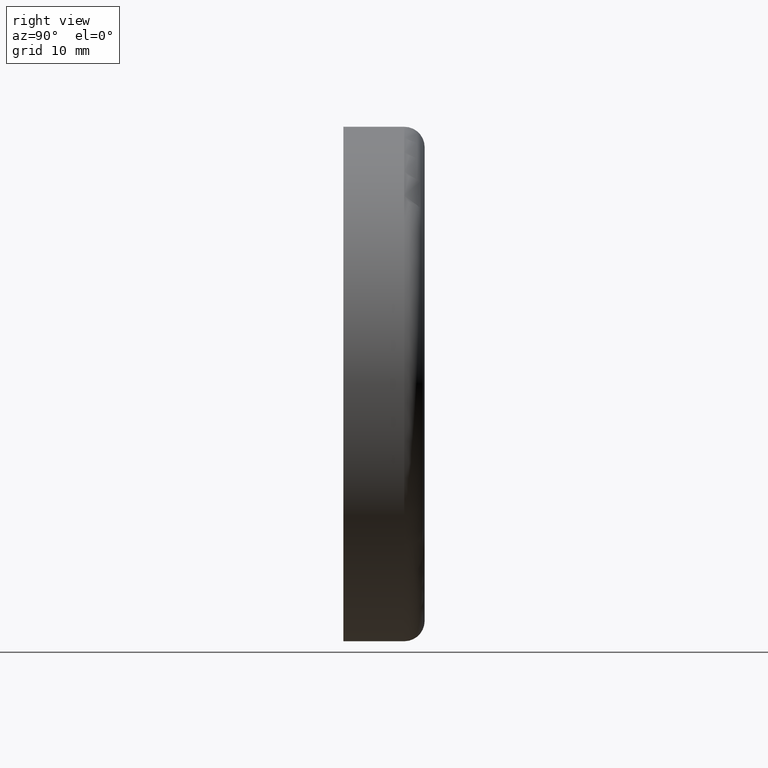
[diagram: clean part render]
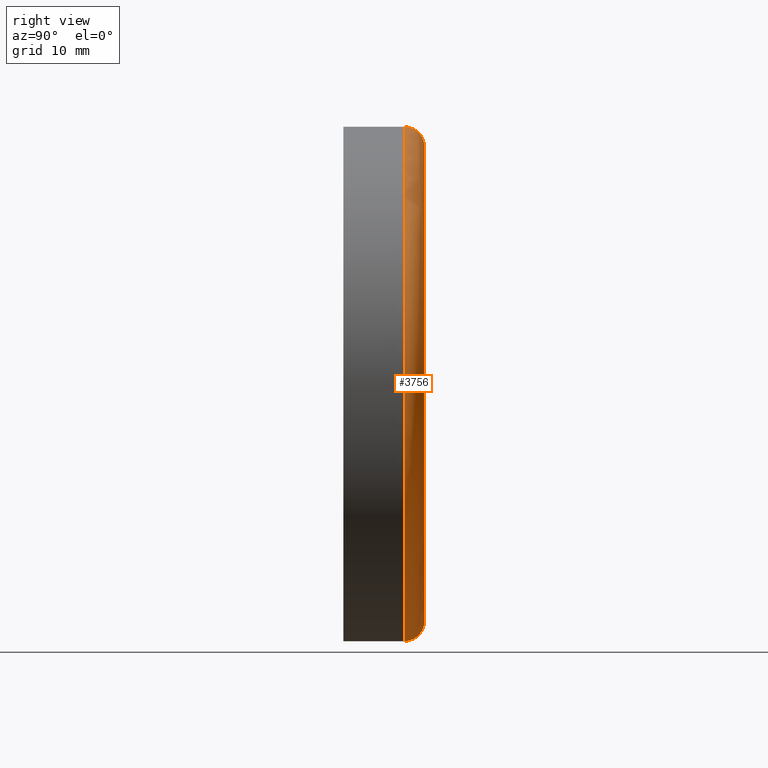
[diagram: same view with one face highlighted and labeled with its STEP entity id]
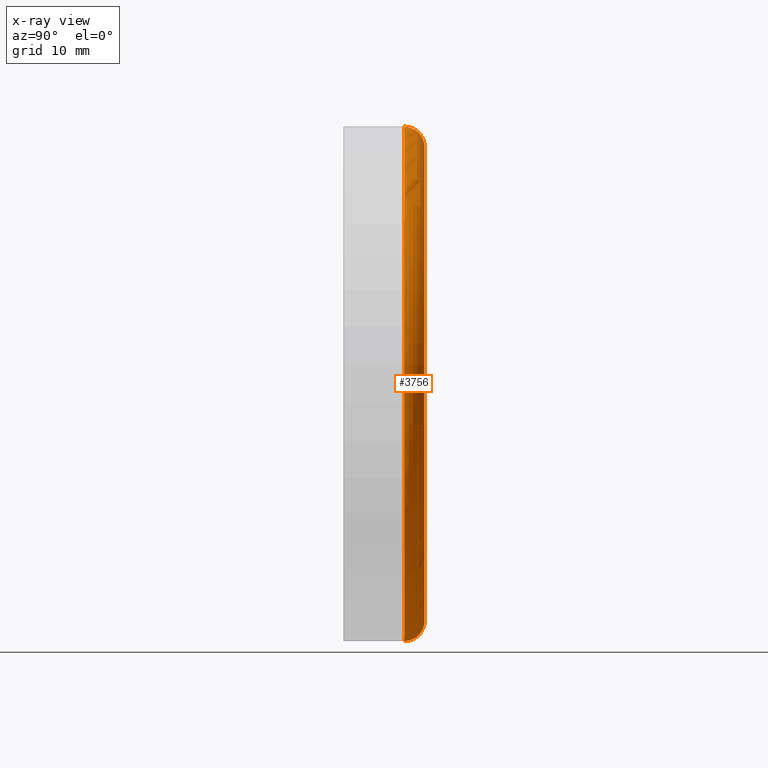
[diagram: x-ray of the same camera — body ghosted, the highlighted face saturated]
A machine part, right view. The second image highlights one B-rep face of the part: STEP entity #3756.
The next image is the same camera in x-ray: the body ghosted, the highlighted face saturated — about 0% of this face is hidden behind the body in this view.
In plain terms, the highlighted toroidal blend (fillet) surface has major radius 35 mm and minor (blend) radius 3 mm.
Its self-contained STEP definition (entity closure, byte-faithful):
#369 = VERTEX_POINT ( 'NONE', #5139 ) ;
#1020 = CARTESIAN_POINT ( 'NONE',  ( 4.286263797015736496E-15, 9.000000000000001776, 35.00000000000000000 ) ) ;
#1429 = DIRECTION ( 'NONE',  ( 0.000000000000000000, 0.000000000000000000, -1.000000000000000000 ) ) ;
#1714 = AXIS2_PLACEMENT_3D ( 'NONE', #9627, #13442, #15935 ) ;
#2566 = ORIENTED_EDGE ( 'NONE', *, *, #7950, .T. ) ;
#2677 = VERTEX_POINT ( 'NONE', #14003 ) ;
#3374 = CARTESIAN_POINT ( 'NONE',  ( 0.000000000000000000, 12.00000000000000000, 0.000000000000000000 ) ) ;
#3439 = AXIS2_PLACEMENT_3D ( 'NONE', #8826, #8938, #1429 ) ;
#3562 = DIRECTION ( 'NONE',  ( -0.000000000000000000, -1.000000000000000000, -0.000000000000000000 ) ) ;
#3612 = FACE_OUTER_BOUND ( 'NONE', #4801, .T. ) ;
#3756 = ADVANCED_FACE ( 'NONE', ( #3612 ), #15035, .T. ) ;
#4801 = EDGE_LOOP ( 'NONE', ( #2566, #8940, #8868, #15217 ) ) ;
#5139 = CARTESIAN_POINT ( 'NONE',  ( 4.469960816887840007E-15, 12.00000000000000000, 35.00000000000000000 ) ) ;
#5228 = EDGE_CURVE ( 'NONE', #13219, #2677, #6288, .T. ) ;
#5372 = CIRCLE ( 'NONE', #1714, 3.000000000000002665 ) ;
#5812 = DIRECTION ( 'NONE',  ( -0.000000000000000000, -1.000000000000000000, -0.000000000000000000 ) ) ;
#6288 = CIRCLE ( 'NONE', #8747, 38.00000000000000711 ) ;
#6657 = AXIS2_PLACEMENT_3D ( 'NONE', #1020, #7205, #7043 ) ;
#7043 = DIRECTION ( 'NONE',  ( -1.224646799147351975E-16, 0.000000000000000000, -1.000000000000000000 ) ) ;
#7153 = EDGE_CURVE ( 'NONE', #369, #2677, #10165, .T. ) ;
#7186 = DIRECTION ( 'NONE',  ( 0.000000000000000000, 0.000000000000000000, -1.000000000000000000 ) ) ;
#7205 = DIRECTION ( 'NONE',  ( 1.000000000000000000, 0.000000000000000000, -1.224646799147353207E-16 ) ) ;
#7950 = EDGE_CURVE ( 'NONE', #14778, #369, #8596, .T. ) ;
#8596 = CIRCLE ( 'NONE', #11345, 35.00000000000000000 ) ;
#8747 = AXIS2_PLACEMENT_3D ( 'NONE', #9855, #3562, #7186 ) ;
#8826 = CARTESIAN_POINT ( 'NONE',  ( 0.000000000000000000, 9.000000000000001776, 0.000000000000000000 ) ) ;
#8868 = ORIENTED_EDGE ( 'NONE', *, *, #5228, .F. ) ;
#8938 = DIRECTION ( 'NONE',  ( -0.000000000000000000, -1.000000000000000000, -0.000000000000000000 ) ) ;
#8940 = ORIENTED_EDGE ( 'NONE', *, *, #7153, .T. ) ;
#9627 = CARTESIAN_POINT ( 'NONE',  ( 0.000000000000000000, 9.000000000000001776, -35.00000000000000000 ) ) ;
#9855 = CARTESIAN_POINT ( 'NONE',  ( 0.000000000000000000, 9.000000000000001776, 0.000000000000000000 ) ) ;
#10165 = CIRCLE ( 'NONE', #6657, 3.000000000000002665 ) ;
#11329 = CARTESIAN_POINT ( 'NONE',  ( 0.000000000000000000, 9.000000000000001776, -38.00000000000000711 ) ) ;
#11330 = CARTESIAN_POINT ( 'NONE',  ( 0.000000000000000000, 12.00000000000000000, -35.00000000000000000 ) ) ;
#11345 = AXIS2_PLACEMENT_3D ( 'NONE', #3374, #5812, #14474 ) ;
#13219 = VERTEX_POINT ( 'NONE', #11329 ) ;
#13442 = DIRECTION ( 'NONE',  ( -1.000000000000000000, 0.000000000000000000, 0.000000000000000000 ) ) ;
#14003 = CARTESIAN_POINT ( 'NONE',  ( 4.653657836759942730E-15, 9.000000000000001776, 38.00000000000000711 ) ) ;
#14474 = DIRECTION ( 'NONE',  ( 0.000000000000000000, 0.000000000000000000, -1.000000000000000000 ) ) ;
#14778 = VERTEX_POINT ( 'NONE', #11330 ) ;
#15035 = TOROIDAL_SURFACE ( 'NONE', #3439, 35.00000000000000000, 3.000000000000000888 ) ;
#15217 = ORIENTED_EDGE ( 'NONE', *, *, #15942, .F. ) ;
#15935 = DIRECTION ( 'NONE',  ( 0.000000000000000000, 0.000000000000000000, 1.000000000000000000 ) ) ;
#15942 = EDGE_CURVE ( 'NONE', #14778, #13219, #5372, .T. ) ;